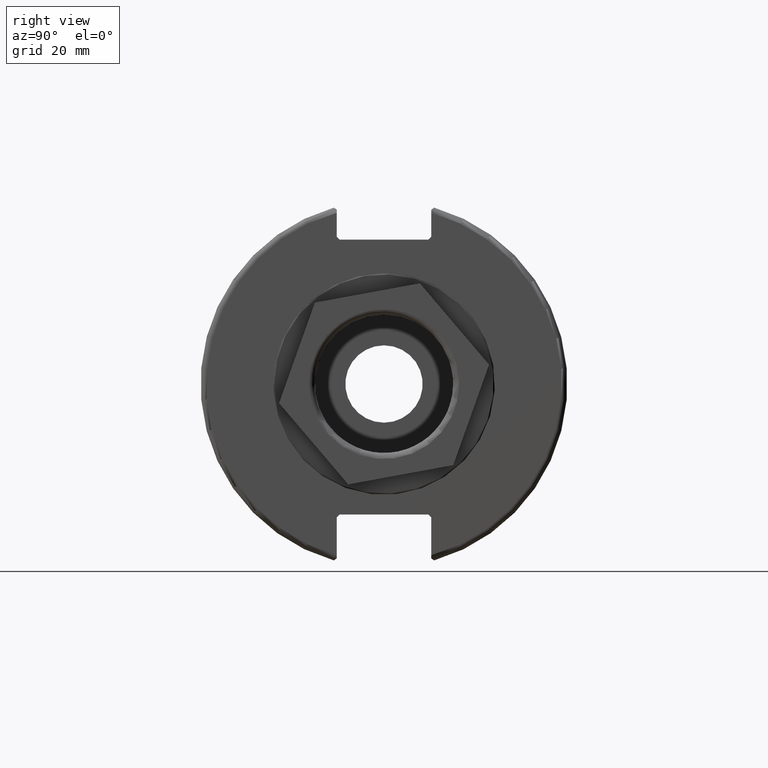
[diagram: clean part render]
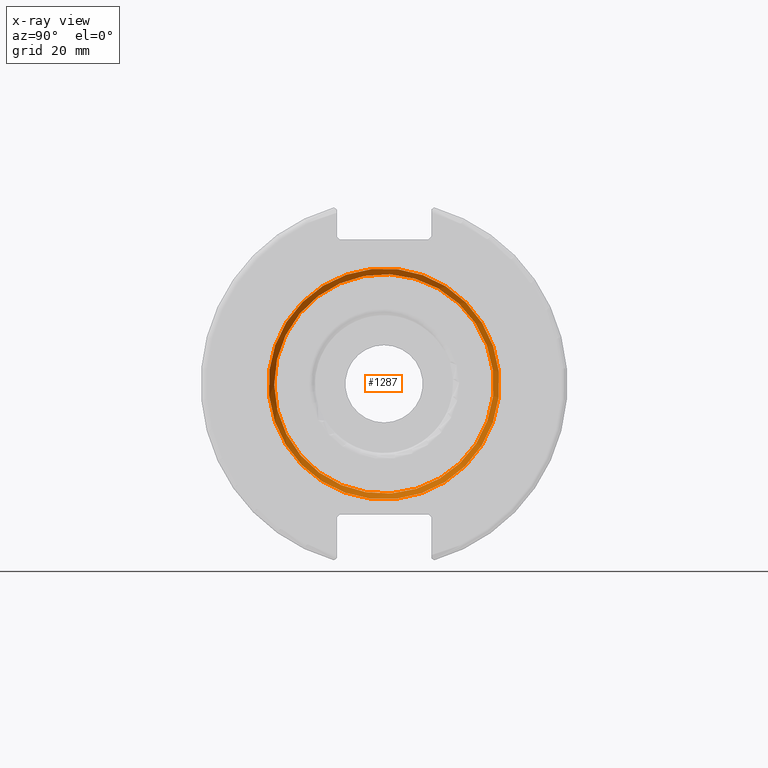
[diagram: x-ray — body ghosted, one internal face saturated and labeled with its STEP entity id]
A machine part, right view, then the same camera in x-ray: the body is ghosted and one INTERNAL B-rep face — a face not visible from any outside direction — is saturated and labeled: STEP entity #1287.
In plain terms, the highlighted conical surface has half-angle 45 deg.
Its self-contained STEP definition (entity closure, byte-faithful):
#128=CONICAL_SURFACE('',#1484,19.5,0.785398163397448);
#193=FACE_OUTER_BOUND('',#278,.T.);
#278=EDGE_LOOP('',(#1155,#1156,#1157,#1158,#1159));
#367=LINE('',#2347,#458);
#458=VECTOR('',#1827,19.5);
#527=CIRCLE('',#1481,19.);
#529=CIRCLE('',#1485,20.);
#530=CIRCLE('',#1486,20.);
#642=VERTEX_POINT('',#2336);
#644=VERTEX_POINT('',#2343);
#645=VERTEX_POINT('',#2344);
#815=EDGE_CURVE('',#642,#642,#527,.T.);
#818=EDGE_CURVE('',#644,#645,#529,.T.);
#819=EDGE_CURVE('',#645,#644,#530,.T.);
#820=EDGE_CURVE('',#644,#642,#367,.T.);
#1155=ORIENTED_EDGE('',*,*,#818,.T.);
#1156=ORIENTED_EDGE('',*,*,#819,.T.);
#1157=ORIENTED_EDGE('',*,*,#820,.T.);
#1158=ORIENTED_EDGE('',*,*,#815,.T.);
#1159=ORIENTED_EDGE('',*,*,#820,.F.);
#1287=ADVANCED_FACE('',(#193),#128,.T.);
#1481=AXIS2_PLACEMENT_3D('',#2337,#1814,#1815);
#1484=AXIS2_PLACEMENT_3D('',#2342,#1821,#1822);
#1485=AXIS2_PLACEMENT_3D('',#2345,#1823,#1824);
#1486=AXIS2_PLACEMENT_3D('',#2346,#1825,#1826);
#1814=DIRECTION('center_axis',(1.,0.,0.));
#1815=DIRECTION('ref_axis',(0.,-1.,0.));
#1821=DIRECTION('center_axis',(1.,0.,0.));
#1822=DIRECTION('ref_axis',(0.,-1.,0.));
#1823=DIRECTION('center_axis',(-1.,0.,0.));
#1824=DIRECTION('ref_axis',(0.,-1.,0.));
#1825=DIRECTION('center_axis',(-1.,0.,0.));
#1826=DIRECTION('ref_axis',(0.,-1.,0.));
#1827=DIRECTION('',(-0.707106781186547,-0.707106781186547,-8.65956056235493E-17));
#2336=CARTESIAN_POINT('',(-11.2,19.,2.32682891837997E-15));
#2337=CARTESIAN_POINT('Origin',(-11.2,0.,0.));
#2342=CARTESIAN_POINT('Origin',(-10.7,0.,0.));
#2343=CARTESIAN_POINT('',(-10.2,20.,-2.44929359829471E-15));
#2344=CARTESIAN_POINT('',(-10.2,-20.,-2.44929359829471E-15));
#2345=CARTESIAN_POINT('Origin',(-10.2,0.,0.));
#2346=CARTESIAN_POINT('Origin',(-10.2,0.,0.));
#2347=CARTESIAN_POINT('',(-10.7,19.5,2.38806125833734E-15));